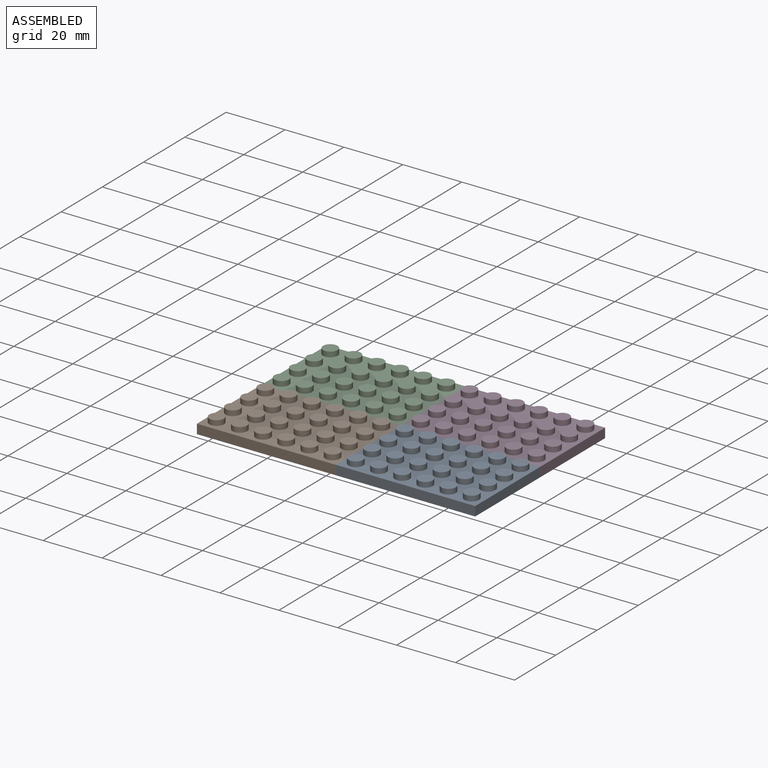
[diagram: assembled view]
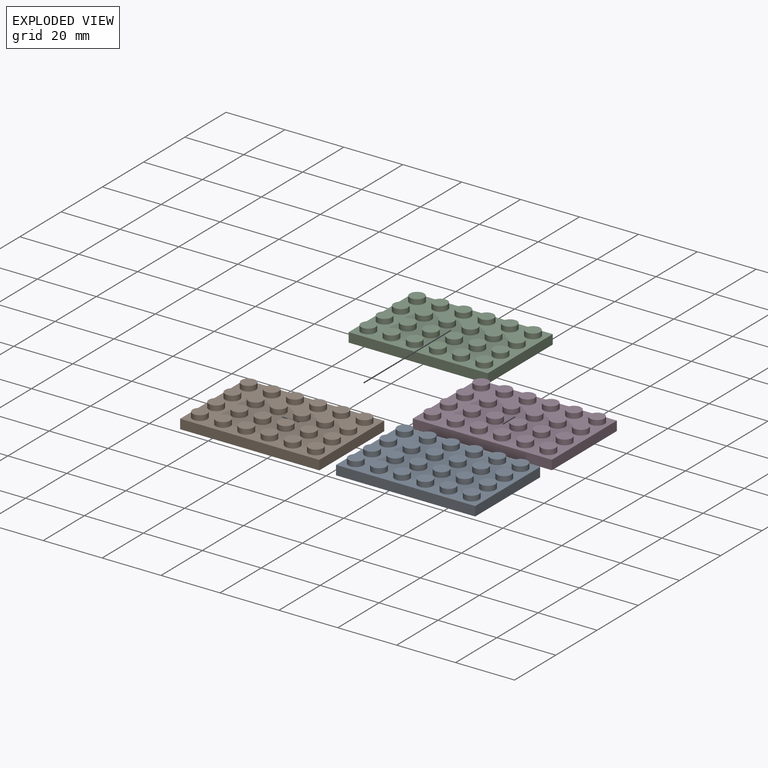
[diagram: exploded view]
GUIDED TOUR — MATED ASSEMBLY (Onshape document 58b31a5422f8670f75dad40a, AutoMate assembly 58b31a5422f8670f75dad40a_1990325701ed851b933301a2_ef3b5d1b8f57e66f4407dce3_default)

This assembly has 4 components, labeled P0..P3 below (a component is one placed occurrence of a part; the same part can appear more than once), held together by 3 mates. A mate is a constraint between two components; its type names the relative motion it leaves free:
  FASTENED — locks the two components together rigidly (no relative motion).
Axis/direction vectors are unit vectors and 'through' points are millimeter coordinates, both in the assembly's world frame.

MATES
  1. FASTENED "Fastened 1": P3 <-> P0, direction (0.000, -1.000, 0.000) through (-35.80, 10.34, 3.17) mm
  2. FASTENED "Fastened 3": P1 <-> P0, direction (1.000, 0.000, 0.000) through (-35.80, -21.15, 1.56) mm
  3. FASTENED "Fastened 2": P1 <-> P2, direction (0.000, 1.000, 0.000) through (-83.04, 10.34, 1.56) mm

ASSEMBLY ORDER
  1. P2 — the base component [order verified]
  2. P1 [order verified]
  3. P3 [order verified]
  4. P0 [order verified]
Order-tag legend:
  [order verified] — this step's position reverses a verified removal order: the component was checked to insert without passing through the ones already placed.

Of the 4 components, 4 carry the full construction recipe — the FeatureScript program that regenerates the part's solid from scratch; the rest are supplied as boundary geometry only.
Each toured component is shown spotlighted twice — in the assembled view, then in the exploded view, where a leader line traces a displaced component back to its assembled socket (saturated green if recipe-attached, orange if geometry-only; every other component desaturated gray) — followed by its recipe or geometry summary and the mates that hold it.
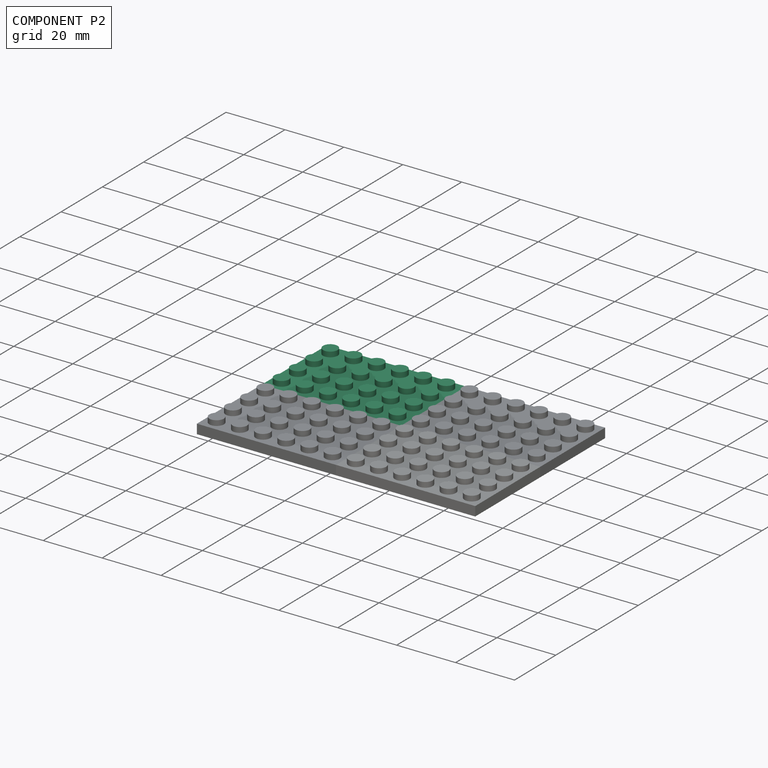
[diagram: component P2 — assembled]
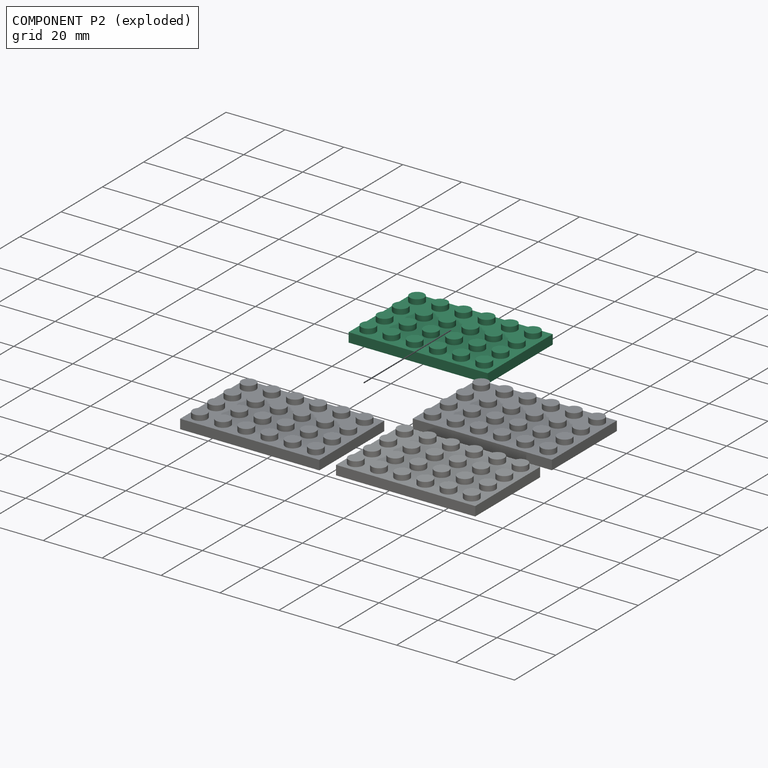
[diagram: component P2 — exploded]
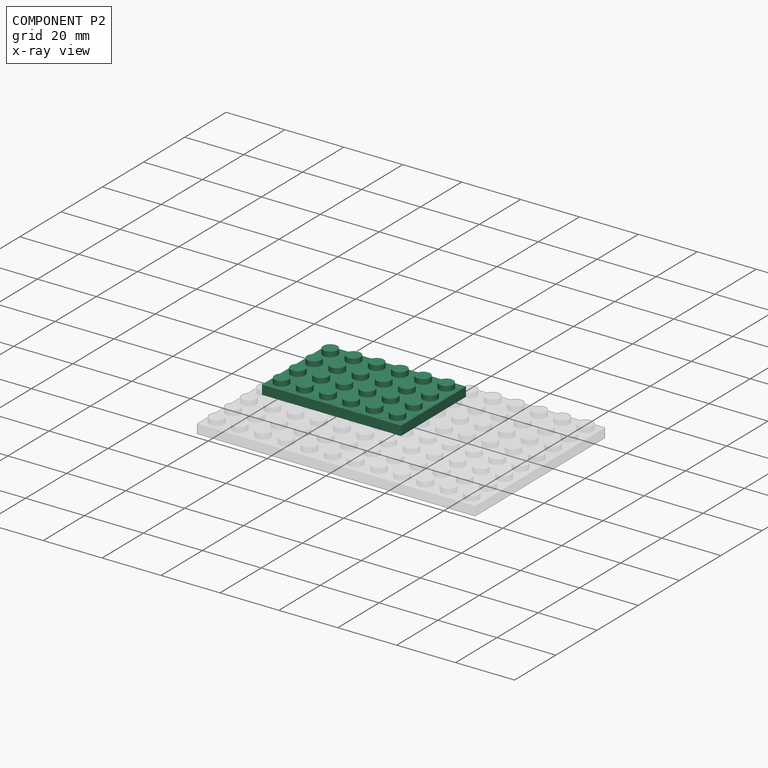
[diagram: component P2 — x-ray view]
COMPONENT P2 — same part as P0 (CADFS 00565946); its construction recipe is shown at P0.
Held by: FASTENED mate "Fastened 2" to P1.
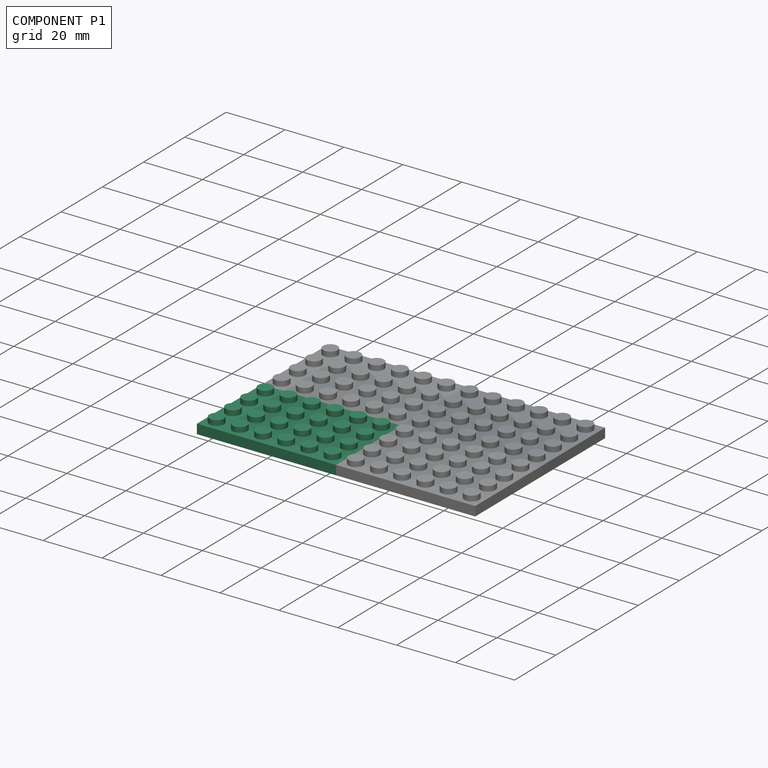
[diagram: component P1 — assembled]
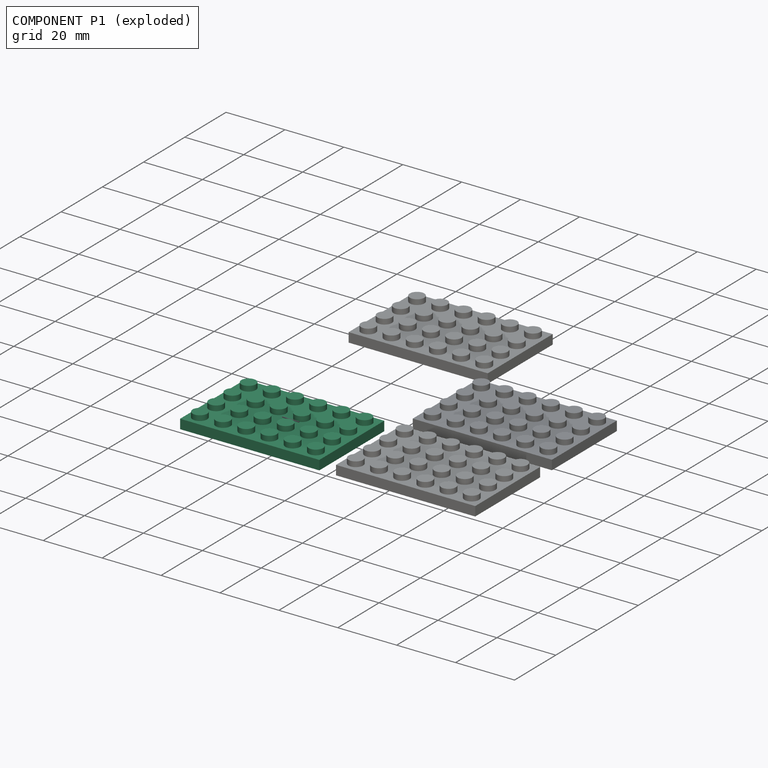
[diagram: component P1 — exploded]
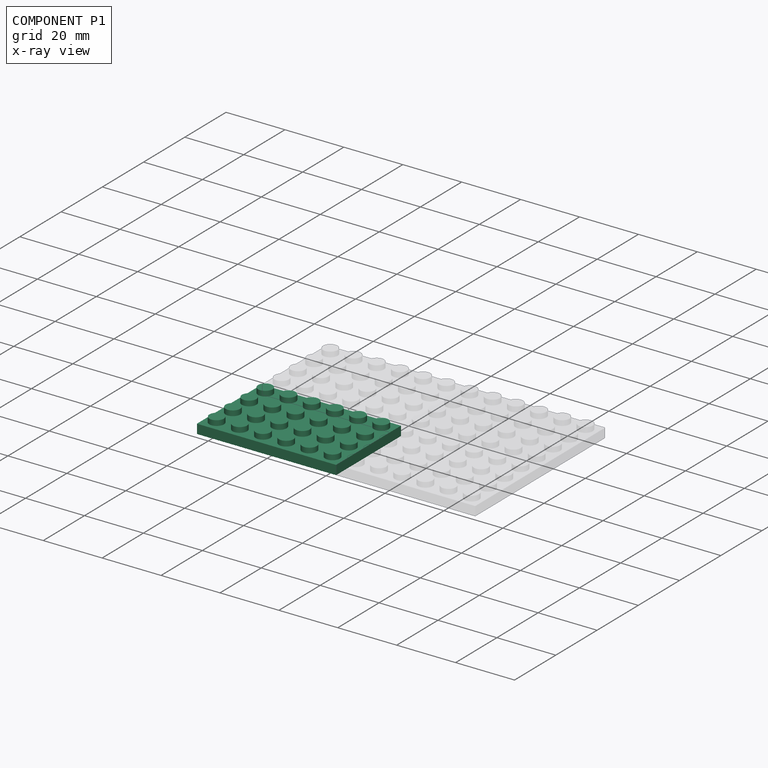
[diagram: component P1 — x-ray view]
COMPONENT P1 — same part as P0 (CADFS 00565946); its construction recipe is shown at P0.
Held by: FASTENED mate "Fastened 3" to P0; FASTENED mate "Fastened 2" to P2.
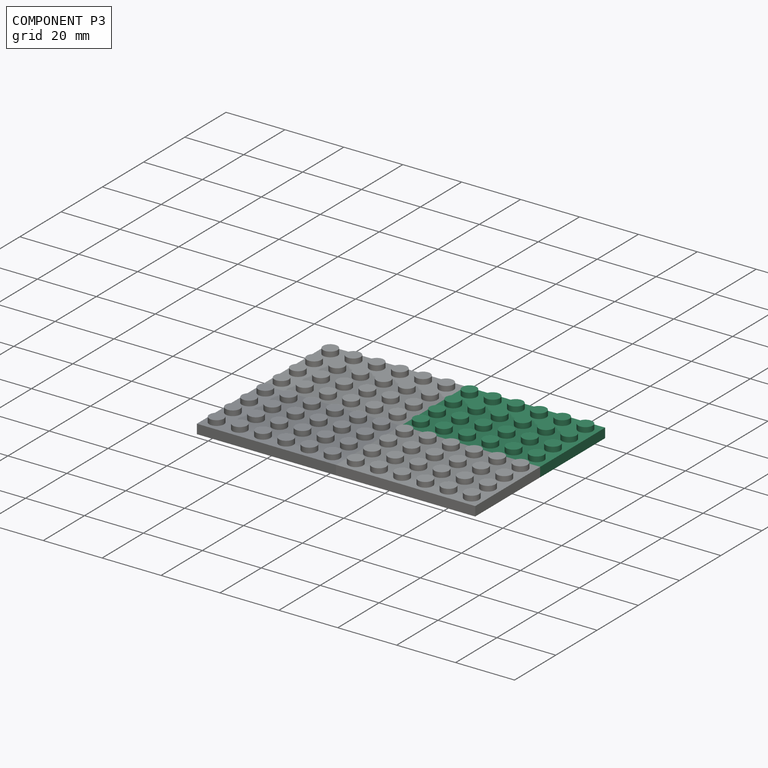
[diagram: component P3 — assembled]
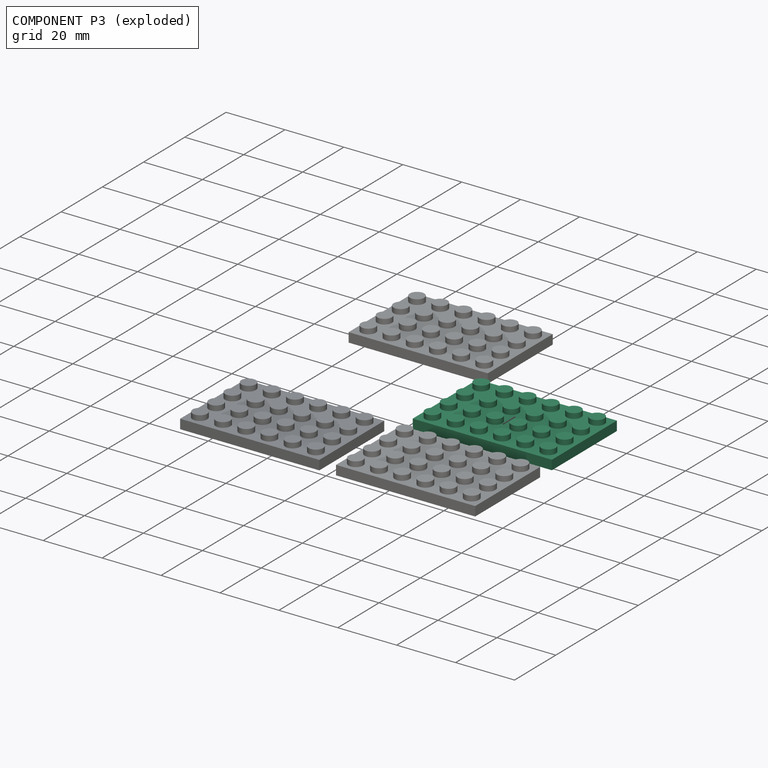
[diagram: component P3 — exploded]
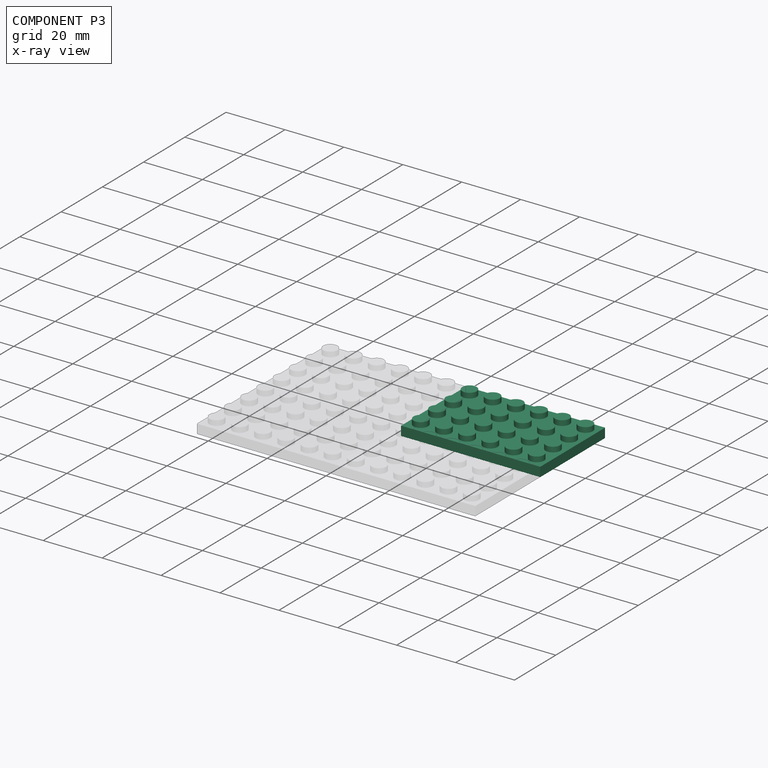
[diagram: component P3 — x-ray view]
COMPONENT P3 — same part as P0 (CADFS 00565946); its construction recipe is shown at P0.
Held by: FASTENED mate "Fastened 1" to P0.
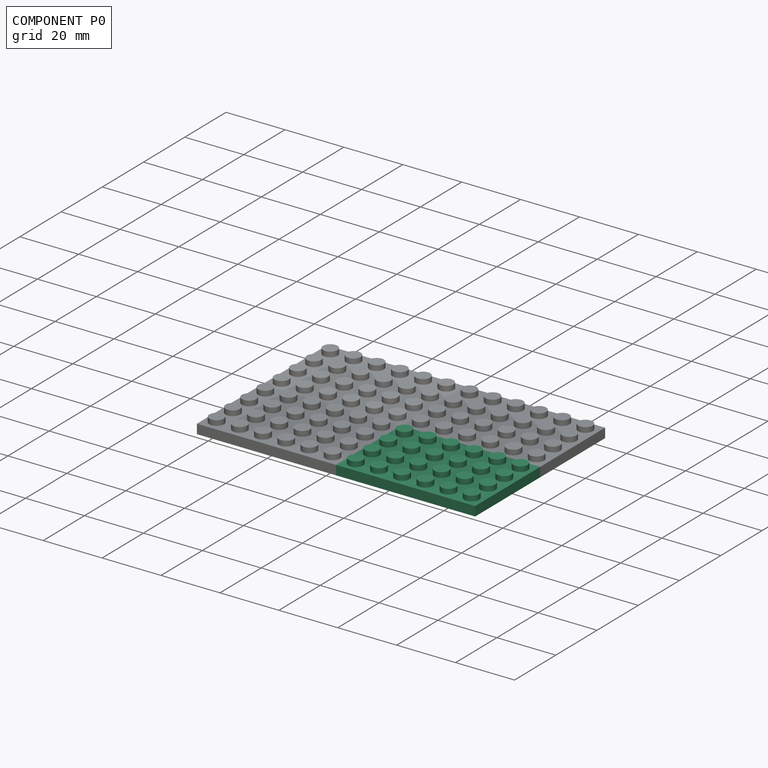
[diagram: component P0 — assembled]
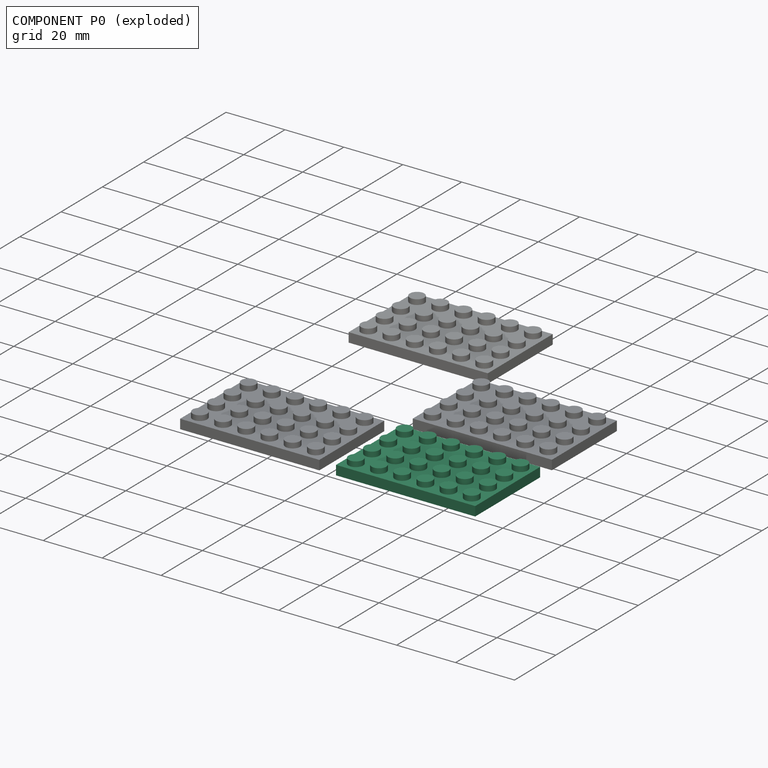
[diagram: component P0 — exploded]
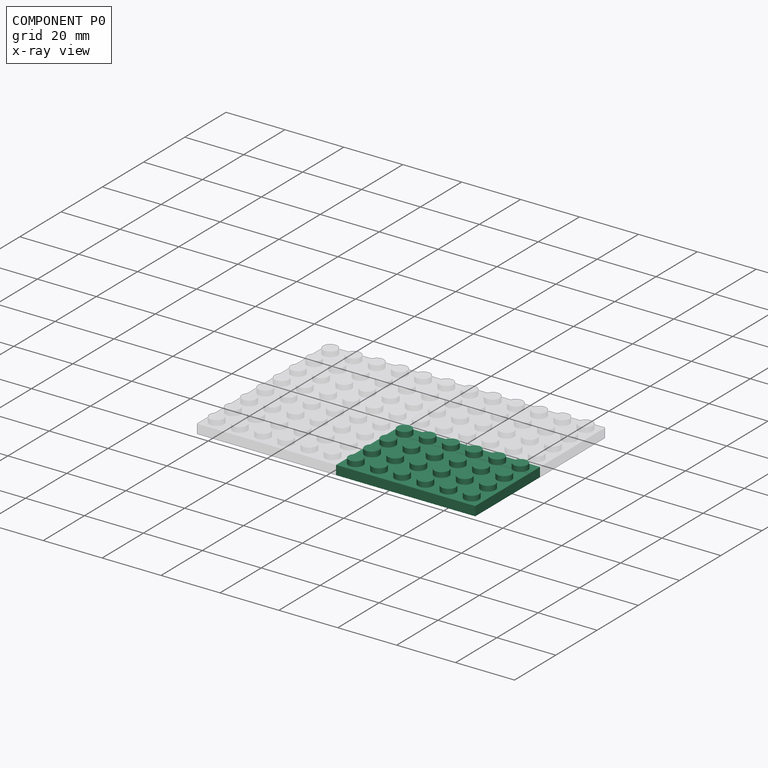
[diagram: component P0 — x-ray view]
COMPONENT P0 — recipe-attached (CADFS 00565946, mesh-verified: the recipe's output STEP matches this component's geometry to below the mesh-comparison resolution (tessellation chordal tolerance ~0.0855 mm)).
Held by: FASTENED mate "Fastened 1" to P3; FASTENED mate "Fastened 3" to P1.
Construction recipe (FeatureScript — the CAD program that rebuilds this solid; sketch coordinates are in the units given by the * unit suffixes, e.g. mm):

FeatureScript 1511;
import(path : "onshape/std/geometry.fs", version : "1511.0");
import(path : "onshape/std/common.fs", version : "1511.0");
const mm = millimeter;
const VERTEX = EntityType.VERTEX;
const EDGE = EntityType.EDGE;
const FACE = EntityType.FACE;
const BODY = EntityType.BODY;
function v(x, y){return vector(x, y);}
function OD(order){return orderDisambiguation(order);}
function OSD(set){return originalSetDisambiguation(set);}
function TD(topology){return topologyDisambiguation(topology);}
function TDD(query){return trueDependencyDisambiguation(query);}
function sQuery(a, b, c) {return sketchEntityQuery(a, b, c);}

annotation { "Feature Type Name" : "Feature", "Feature Type Description" : "" }
export const myFeature = defineFeature(function(context is Context, id is Id, definition is map)
    precondition{}
    {
        {
            var Q0;
            Q0=qCreatedBy(makeId("Top.planeOp"),FACE);
            var sketch = newSketch(context, id + "F0", { "sketchPlane" : qUnion([Q0])});
            skLineSegment(sketch, "E0.rect.bottom", {"start": v(23.62, 15.75) * mm, "end": v(-23.62, 15.75) * mm});
            skLineSegment(sketch, "E0.rect.top", {"start": v(23.62, -15.75) * mm, "end": v(-23.62, -15.75) * mm});
            skLineSegment(sketch, "E0.rect.left", {"start": v(23.62, 15.75) * mm, "end": v(23.62, -15.75) * mm});
            skLineSegment(sketch, "E0.rect.right", {"start": v(-23.62, 15.75) * mm, "end": v(-23.62, -15.75) * mm});
            skPoint(sketch, "E0.rect.middle", {"position": v(0, 0) * mm});
            skSolve(sketch);
        }
        {
            var Q0;
            Q0=makeQuery(id+"F0.imprint","IMPRINT",FACE,{"disambiguationData":[TD([[makeQuery(id+"F0.imprint","IMPRINT",EDGE,{"derivedFrom":sQuery(id+"F0.wireOp",EDGE,"E0.rect.bottom")}),1.0]])]});
            extrude(context, id + "F1", {"entities" : qUnion([Q0]), "depth" : 3.2 * mm});
        }
        {
            var Q0;
            Q0=makeQuery(id+"F1.opExtrude","CAP_FACE",FACE,{"disambiguationData":[OSD([sQuery(id+"F0.wireOp",EDGE,"E0.rect.bottom"),sQuery(id+"F0.wireOp",EDGE,"E0.rect.top"),sQuery(id+"F0.wireOp",EDGE,"E0.rect.left"),sQuery(id+"F0.wireOp",EDGE,"E0.rect.right")])],"isStart":false});
            var sketch = newSketch(context, id + "F2", { "sketchPlane" : qUnion([Q0])});
            skLineSegment(sketch, "E1", {"start": v(0, 0) * mm, "end": v(0, 7.87) * mm});
            skLineSegment(sketch, "E2", {"start": v(0, 7.87) * mm, "end": v(0, 15.75) * mm});
            skLineSegment(sketch, "E3", {"start": v(0, 0) * mm, "end": v(0, -7.87) * mm});
            skLineSegment(sketch, "E4", {"start": v(0, -7.87) * mm, "end": v(0, -15.75) * mm});
            skPoint(sketch, "E4.endSnap0", {"position": v(0, -15.75) * mm});
            skLineSegment(sketch, "E5", {"start": v(0, 0) * mm, "end": v(3.94, 0) * mm});
            skLineSegment(sketch, "E6", {"start": v(3.94, 0) * mm, "end": v(11.81, 0) * mm});
            skLineSegment(sketch, "E7", {"start": v(11.81, 0) * mm, "end": v(19.69, 0) * mm});
            skLineSegment(sketch, "E8", {"start": v(0, 0) * mm, "end": v(-3.94, 0) * mm});
            skLineSegment(sketch, "E9", {"start": v(-3.94, 0) * mm, "end": v(-11.81, 0) * mm});
            skLineSegment(sketch, "E10", {"start": v(-11.81, 0) * mm, "end": v(-19.69, 0) * mm});
            skLineSegment(sketch, "E11", {"start": v(-19.69, 0) * mm, "end": v(-19.69, -3.94) * mm});
            skLineSegment(sketch, "E12", {"start": v(-19.69, -3.94) * mm, "end": v(-19.69, -11.81) * mm});
            skLineSegment(sketch, "E13", {"start": v(-19.69, 0) * mm, "end": v(-19.69, 3.94) * mm});
            skLineSegment(sketch, "E14", {"start": v(-19.69, 3.94) * mm, "end": v(-19.69, 11.81) * mm});
            skLineSegment(sketch, "E15", {"start": v(-19.69, 3.94) * mm, "end": v(-11.81, 3.94) * mm});
            skLineSegment(sketch, "E16", {"start": v(-11.81, 3.94) * mm, "end": v(-3.94, 3.94) * mm});
            skLineSegment(sketch, "E17", {"start": v(-3.94, 3.94) * mm, "end": v(-3.94, 11.81) * mm});
            skLineSegment(sketch, "E18", {"start": v(-3.94, 11.81) * mm, "end": v(-11.81, 11.81) * mm});
            skLineSegment(sketch, "E19", {"start": v(-19.69, -3.94) * mm, "end": v(-11.81, -3.94) * mm});
            skLineSegment(sketch, "E20", {"start": v(-11.81, -3.94) * mm, "end": v(-3.94, -3.94) * mm});
            skLineSegment(sketch, "E21", {"start": v(-3.94, -3.94) * mm, "end": v(-3.94, -11.81) * mm});
            skLineSegment(sketch, "E22", {"start": v(-3.94, -11.81) * mm, "end": v(-11.81, -11.81) * mm});
            skLineSegment(sketch, "E23", {"start": v(3.94, 0) * mm, "end": v(3.94, 3.94) * mm});
            skPoint(sketch, "E23.endSnap0", {"position": v(0, 3.94) * mm});
            skLineSegment(sketch, "E24", {"start": v(3.94, 3.94) * mm, "end": v(3.94, 11.81) * mm});
            skPoint(sketch, "E24.endSnap0", {"position": v(0, 11.81) * mm});
            skLineSegment(sketch, "E25", {"start": v(3.94, 11.81) * mm, "end": v(11.81, 11.81) * mm});
            skLineSegment(sketch, "E26", {"start": v(11.81, 11.81) * mm, "end": v(19.69, 11.81) * mm});
            skLineSegment(sketch, "E27", {"start": v(19.69, 11.81) * mm, "end": v(19.69, 3.94) * mm});
            skLineSegment(sketch, "E28", {"start": v(19.69, 3.94) * mm, "end": v(11.81, 3.94) * mm});
            skLineSegment(sketch, "E29", {"start": v(3.94, 0) * mm, "end": v(3.94, -3.94) * mm});
            skPoint(sketch, "E29.endSnap0", {"position": v(0, -3.94) * mm});
            skLineSegment(sketch, "E30", {"start": v(3.94, -3.94) * mm, "end": v(3.94, -11.81) * mm});
            skPoint(sketch, "E30.endSnap0", {"position": v(0, -11.81) * mm});
            skLineSegment(sketch, "E31", {"start": v(3.94, -11.81) * mm, "end": v(11.81, -11.81) * mm});
            skLineSegment(sketch, "E32", {"start": v(11.81, -11.81) * mm, "end": v(19.69, -11.81) * mm});
            skLineSegment(sketch, "E33", {"start": v(19.69, -11.81) * mm, "end": v(19.69, -3.94) * mm});
            skLineSegment(sketch, "E34", {"start": v(19.69, -3.94) * mm, "end": v(11.81, -3.94) * mm});
            skCircle(sketch, "E35", {"center": v(-19.69, 11.81) * mm, "radius": 2.46 * mm});
            skCircle(sketch, "E36", {"center": v(-11.81, 11.81) * mm, "radius": 2.46 * mm});
            skCircle(sketch, "E37", {"center": v(-3.94, 11.81) * mm, "radius": 2.46 * mm});
            skCircle(sketch, "E38", {"center": v(3.94, 11.81) * mm, "radius": 2.46 * mm});
            skCircle(sketch, "E39", {"center": v(11.81, 11.81) * mm, "radius": 2.46 * mm});
            skCircle(sketch, "E40", {"center": v(19.69, 11.81) * mm, "radius": 2.46 * mm});
            skCircle(sketch, "E41", {"center": v(19.69, 3.94) * mm, "radius": 2.46 * mm});
            skCircle(sketch, "E42", {"center": v(11.81, 3.94) * mm, "radius": 2.46 * mm});
            skCircle(sketch, "E43", {"center": v(3.94, 3.94) * mm, "radius": 2.46 * mm});
            skCircle(sketch, "E44", {"center": v(-3.94, 3.94) * mm, "radius": 2.46 * mm});
            skCircle(sketch, "E45", {"center": v(-11.81, 3.94) * mm, "radius": 2.46 * mm});
            skCircle(sketch, "E46", {"center": v(-19.69, 3.94) * mm, "radius": 2.46 * mm});
            skCircle(sketch, "E47", {"center": v(-19.69, -3.94) * mm, "radius": 2.46 * mm});
            skCircle(sketch, "E48", {"center": v(-11.81, -3.94) * mm, "radius": 2.46 * mm});
            skCircle(sketch, "E49", {"center": v(-3.94, -3.94) * mm, "radius": 2.46 * mm});
            skCircle(sketch, "E50", {"center": v(-3.94, -11.81) * mm, "radius": 2.46 * mm});
            skCircle(sketch, "E51", {"center": v(-11.81, -11.81) * mm, "radius": 2.46 * mm});
            skCircle(sketch, "E52", {"center": v(-19.69, -11.81) * mm, "radius": 2.46 * mm});
            skCircle(sketch, "E53", {"center": v(3.94, -11.81) * mm, "radius": 2.46 * mm});
            skCircle(sketch, "E54", {"center": v(11.81, -11.81) * mm, "radius": 2.46 * mm});
            skCircle(sketch, "E55", {"center": v(19.69, -11.81) * mm, "radius": 2.46 * mm});
            skCircle(sketch, "E56", {"center": v(19.69, -3.94) * mm, "radius": 2.46 * mm});
            skCircle(sketch, "E57", {"center": v(11.81, -3.94) * mm, "radius": 2.46 * mm});
            skCircle(sketch, "E58", {"center": v(3.94, -3.94) * mm, "radius": 2.46 * mm});
            skSolve(sketch);
        }
        {
            var Q0;
            Q0=makeQuery(id+"F2.imprint","IMPRINT",FACE,{"disambiguationData":[TD([[makeQuery(id+"F2.imprint","IMPRINT",EDGE,{"derivedFrom":sQuery(id+"F2.wireOp",EDGE,"E35")}),1.0]])]});
            var Q1;
            Q1=makeQuery(id+"F2.imprint","IMPRINT",FACE,{"disambiguationData":[TD([[makeQuery(id+"F2.imprint","IMPRINT",EDGE,{"derivedFrom":sQuery(id+"F2.wireOp",EDGE,"E36")}),1.0]])]});
            var Q2;
            {var subQ0=sQuery(id+"F2.wireOp",EDGE,"E18");var subQ1=sQuery(id+"F2.wireOp",EDGE,"E17");var subQ2=makeQuery(id+"F2.imprint","INTERSECT",VERTEX,{"derivedFrom":[subQ1,subQ0]});Q2=makeQuery(id+"F2.imprint","IMPRINT",FACE,{"disambiguationData":[TD([[makeQuery(id+"F2.imprint","IMPRINT",EDGE,{"disambiguationData":[TD([[subQ2,1.0]])],"derivedFrom":subQ1}),-1.0]])]});}
            var Q3;
            {var subQ0=sQuery(id+"F2.wireOp",EDGE,"E18");var subQ1=sQuery(id+"F2.wireOp",EDGE,"E17");var subQ2=makeQuery(id+"F2.imprint","INTERSECT",VERTEX,{"derivedFrom":[subQ1,subQ0]});Q3=makeQuery(id+"F2.imprint","IMPRINT",FACE,{"disambiguationData":[TD([[makeQuery(id+"F2.imprint","IMPRINT",EDGE,{"disambiguationData":[TD([[subQ2,1.0]])],"derivedFrom":subQ1}),1.0]])]});}
            var Q4;
            {var subQ0=sQuery(id+"F2.wireOp",EDGE,"E25");var subQ1=sQuery(id+"F2.wireOp",EDGE,"E24");var subQ2=makeQuery(id+"F2.imprint","INTERSECT",VERTEX,{"derivedFrom":[subQ1,subQ0]});Q4=makeQuery(id+"F2.imprint","IMPRINT",FACE,{"disambiguationData":[TD([[makeQuery(id+"F2.imprint","IMPRINT",EDGE,{"disambiguationData":[TD([[subQ2,1.0]])],"derivedFrom":subQ1}),1.0]])]});}
            var Q5;
            {var subQ0=sQuery(id+"F2.wireOp",EDGE,"E25");var subQ1=sQuery(id+"F2.wireOp",EDGE,"E24");var subQ2=makeQuery(id+"F2.imprint","INTERSECT",VERTEX,{"derivedFrom":[subQ1,subQ0]});Q5=makeQuery(id+"F2.imprint","IMPRINT",FACE,{"disambiguationData":[TD([[makeQuery(id+"F2.imprint","IMPRINT",EDGE,{"disambiguationData":[TD([[subQ2,1.0]])],"derivedFrom":subQ1}),-1.0]])]});}
            var Q6;
            {var subQ0=sQuery(id+"F2.wireOp",EDGE,"E24");var subQ1=sQuery(id+"F2.wireOp",EDGE,"E23");var subQ2=makeQuery(id+"F2.imprint","INTERSECT",VERTEX,{"derivedFrom":[subQ1,subQ0]});Q6=makeQuery(id+"F2.imprint","IMPRINT",FACE,{"disambiguationData":[TD([[makeQuery(id+"F2.imprint","IMPRINT",EDGE,{"disambiguationData":[TD([[subQ2,1.0]])],"derivedFrom":subQ1}),-1.0]])]});}
            var Q7;
            {var subQ0=sQuery(id+"F2.wireOp",EDGE,"E24");var subQ1=sQuery(id+"F2.wireOp",EDGE,"E23");var subQ2=makeQuery(id+"F2.imprint","INTERSECT",VERTEX,{"derivedFrom":[subQ1,subQ0]});Q7=makeQuery(id+"F2.imprint","IMPRINT",FACE,{"disambiguationData":[TD([[makeQuery(id+"F2.imprint","IMPRINT",EDGE,{"disambiguationData":[TD([[subQ2,1.0]])],"derivedFrom":subQ1}),1.0]])]});}
            var Q8;
            {var subQ0=sQuery(id+"F2.wireOp",EDGE,"E17");var subQ1=sQuery(id+"F2.wireOp",EDGE,"E16");var subQ2=makeQuery(id+"F2.imprint","INTERSECT",VERTEX,{"derivedFrom":[subQ1,subQ0]});Q8=makeQuery(id+"F2.imprint","IMPRINT",FACE,{"disambiguationData":[TD([[makeQuery(id+"F2.imprint","IMPRINT",EDGE,{"disambiguationData":[TD([[subQ2,1.0]])],"derivedFrom":subQ1}),-1.0]])]});}
            var Q9;
            {var subQ0=sQuery(id+"F2.wireOp",EDGE,"E17");var subQ1=sQuery(id+"F2.wireOp",EDGE,"E16");var subQ2=makeQuery(id+"F2.imprint","INTERSECT",VERTEX,{"derivedFrom":[subQ1,subQ0]});Q9=makeQuery(id+"F2.imprint","IMPRINT",FACE,{"disambiguationData":[TD([[makeQuery(id+"F2.imprint","IMPRINT",EDGE,{"disambiguationData":[TD([[subQ2,1.0]])],"derivedFrom":subQ1}),1.0]])]});}
            var Q10;
            {var subQ0=sQuery(id+"F2.wireOp",EDGE,"E16");var subQ1=sQuery(id+"F2.wireOp",EDGE,"E15");var subQ2=makeQuery(id+"F2.imprint","INTERSECT",VERTEX,{"derivedFrom":[subQ1,subQ0]});Q10=makeQuery(id+"F2.imprint","IMPRINT",FACE,{"disambiguationData":[TD([[makeQuery(id+"F2.imprint","IMPRINT",EDGE,{"disambiguationData":[TD([[subQ2,1.0]])],"derivedFrom":subQ1}),1.0]])]});}
            var Q11;
            {var subQ0=sQuery(id+"F2.wireOp",EDGE,"E16");var subQ1=sQuery(id+"F2.wireOp",EDGE,"E15");var subQ2=makeQuery(id+"F2.imprint","INTERSECT",VERTEX,{"derivedFrom":[subQ1,subQ0]});Q11=makeQuery(id+"F2.imprint","IMPRINT",FACE,{"disambiguationData":[TD([[makeQuery(id+"F2.imprint","IMPRINT",EDGE,{"disambiguationData":[TD([[subQ2,1.0]])],"derivedFrom":subQ1}),-1.0]])]});}
            var Q12;
            {var subQ1=sQuery(id+"F2.wireOp",EDGE,"E14");var subQ3=sQuery(id+"F2.wireOp",EDGE,"E46");var subQ4=makeQuery(id+"F2.imprint","INTERSECT",VERTEX,{"derivedFrom":[subQ1,subQ3]});Q12=makeQuery(id+"F2.imprint","IMPRINT",FACE,{"disambiguationData":[TD([[makeQuery(id+"F2.imprint","IMPRINT",EDGE,{"disambiguationData":[TD([[subQ4,1.0]])],"derivedFrom":subQ3}),1.0]])]});}
            var Q13;
            {var subQ1=sQuery(id+"F2.wireOp",EDGE,"E13");var subQ3=sQuery(id+"F2.wireOp",EDGE,"E46");var subQ4=makeQuery(id+"F2.imprint","INTERSECT",VERTEX,{"derivedFrom":[subQ1,subQ3]});Q13=makeQuery(id+"F2.imprint","IMPRINT",FACE,{"disambiguationData":[TD([[makeQuery(id+"F2.imprint","IMPRINT",EDGE,{"disambiguationData":[TD([[subQ4,-1.0]])],"derivedFrom":subQ3}),1.0]])]});}
            var Q14;
            {var subQ1=sQuery(id+"F2.wireOp",EDGE,"E13");var subQ3=sQuery(id+"F2.wireOp",EDGE,"E46");var subQ4=makeQuery(id+"F2.imprint","INTERSECT",VERTEX,{"derivedFrom":[subQ1,subQ3]});Q14=makeQuery(id+"F2.imprint","IMPRINT",FACE,{"disambiguationData":[TD([[makeQuery(id+"F2.imprint","IMPRINT",EDGE,{"disambiguationData":[TD([[subQ4,1.0]])],"derivedFrom":subQ3}),1.0]])]});}
            var Q15;
            {var subQ1=sQuery(id+"F2.wireOp",EDGE,"E11");var subQ3=sQuery(id+"F2.wireOp",EDGE,"E47");var subQ4=makeQuery(id+"F2.imprint","INTERSECT",VERTEX,{"derivedFrom":[subQ1,subQ3]});Q15=makeQuery(id+"F2.imprint","IMPRINT",FACE,{"disambiguationData":[TD([[makeQuery(id+"F2.imprint","IMPRINT",EDGE,{"disambiguationData":[TD([[subQ4,1.0]])],"derivedFrom":subQ3}),1.0]])]});}
            var Q16;
            {var subQ1=sQuery(id+"F2.wireOp",EDGE,"E12");var subQ3=sQuery(id+"F2.wireOp",EDGE,"E47");var subQ4=makeQuery(id+"F2.imprint","INTERSECT",VERTEX,{"derivedFrom":[subQ1,subQ3]});Q16=makeQuery(id+"F2.imprint","IMPRINT",FACE,{"disambiguationData":[TD([[makeQuery(id+"F2.imprint","IMPRINT",EDGE,{"disambiguationData":[TD([[subQ4,-1.0]])],"derivedFrom":subQ3}),1.0]])]});}
            var Q17;
            {var subQ1=sQuery(id+"F2.wireOp",EDGE,"E11");var subQ3=sQuery(id+"F2.wireOp",EDGE,"E47");var subQ4=makeQuery(id+"F2.imprint","INTERSECT",VERTEX,{"derivedFrom":[subQ1,subQ3]});Q17=makeQuery(id+"F2.imprint","IMPRINT",FACE,{"disambiguationData":[TD([[makeQuery(id+"F2.imprint","IMPRINT",EDGE,{"disambiguationData":[TD([[subQ4,-1.0]])],"derivedFrom":subQ3}),1.0]])]});}
            var Q18;
            {var subQ0=sQuery(id+"F2.wireOp",EDGE,"E20");var subQ1=sQuery(id+"F2.wireOp",EDGE,"E19");var subQ2=makeQuery(id+"F2.imprint","INTERSECT",VERTEX,{"derivedFrom":[subQ1,subQ0]});Q18=makeQuery(id+"F2.imprint","IMPRINT",FACE,{"disambiguationData":[TD([[makeQuery(id+"F2.imprint","IMPRINT",EDGE,{"disambiguationData":[TD([[subQ2,1.0]])],"derivedFrom":subQ1}),1.0]])]});}
            var Q19;
            {var subQ0=sQuery(id+"F2.wireOp",EDGE,"E20");var subQ1=sQuery(id+"F2.wireOp",EDGE,"E19");var subQ2=makeQuery(id+"F2.imprint","INTERSECT",VERTEX,{"derivedFrom":[subQ1,subQ0]});Q19=makeQuery(id+"F2.imprint","IMPRINT",FACE,{"disambiguationData":[TD([[makeQuery(id+"F2.imprint","IMPRINT",EDGE,{"disambiguationData":[TD([[subQ2,1.0]])],"derivedFrom":subQ1}),-1.0]])]});}
            var Q20;
            {var subQ0=sQuery(id+"F2.wireOp",EDGE,"E21");var subQ1=sQuery(id+"F2.wireOp",EDGE,"E20");var subQ2=makeQuery(id+"F2.imprint","INTERSECT",VERTEX,{"derivedFrom":[subQ1,subQ0]});Q20=makeQuery(id+"F2.imprint","IMPRINT",FACE,{"disambiguationData":[TD([[makeQuery(id+"F2.imprint","IMPRINT",EDGE,{"disambiguationData":[TD([[subQ2,1.0]])],"derivedFrom":subQ1}),-1.0]])]});}
            var Q21;
            {var subQ0=sQuery(id+"F2.wireOp",EDGE,"E21");var subQ1=sQuery(id+"F2.wireOp",EDGE,"E20");var subQ2=makeQuery(id+"F2.imprint","INTERSECT",VERTEX,{"derivedFrom":[subQ1,subQ0]});Q21=makeQuery(id+"F2.imprint","IMPRINT",FACE,{"disambiguationData":[TD([[makeQuery(id+"F2.imprint","IMPRINT",EDGE,{"disambiguationData":[TD([[subQ2,1.0]])],"derivedFrom":subQ1}),1.0]])]});}
            var Q22;
            {var subQ0=sQuery(id+"F2.wireOp",EDGE,"E22");var subQ1=sQuery(id+"F2.wireOp",EDGE,"E21");var subQ2=makeQuery(id+"F2.imprint","INTERSECT",VERTEX,{"derivedFrom":[subQ1,subQ0]});Q22=makeQuery(id+"F2.imprint","IMPRINT",FACE,{"disambiguationData":[TD([[makeQuery(id+"F2.imprint","IMPRINT",EDGE,{"disambiguationData":[TD([[subQ2,1.0]])],"derivedFrom":subQ1}),1.0]])]});}
            var Q23;
            {var subQ0=sQuery(id+"F2.wireOp",EDGE,"E22");var subQ1=sQuery(id+"F2.wireOp",EDGE,"E21");var subQ2=makeQuery(id+"F2.imprint","INTERSECT",VERTEX,{"derivedFrom":[subQ1,subQ0]});Q23=makeQuery(id+"F2.imprint","IMPRINT",FACE,{"disambiguationData":[TD([[makeQuery(id+"F2.imprint","IMPRINT",EDGE,{"disambiguationData":[TD([[subQ2,1.0]])],"derivedFrom":subQ1}),-1.0]])]});}
            var Q24;
            Q24=makeQuery(id+"F2.imprint","IMPRINT",FACE,{"disambiguationData":[TD([[makeQuery(id+"F2.imprint","IMPRINT",EDGE,{"derivedFrom":sQuery(id+"F2.wireOp",EDGE,"E51")}),1.0]])]});
            var Q25;
            Q25=makeQuery(id+"F2.imprint","IMPRINT",FACE,{"disambiguationData":[TD([[makeQuery(id+"F2.imprint","IMPRINT",EDGE,{"derivedFrom":sQuery(id+"F2.wireOp",EDGE,"E52")}),1.0]])]});
            var Q26;
            {var subQ0=sQuery(id+"F2.wireOp",EDGE,"E31");var subQ1=sQuery(id+"F2.wireOp",EDGE,"E30");var subQ2=makeQuery(id+"F2.imprint","INTERSECT",VERTEX,{"derivedFrom":[subQ1,subQ0]});Q26=makeQuery(id+"F2.imprint","IMPRINT",FACE,{"disambiguationData":[TD([[makeQuery(id+"F2.imprint","IMPRINT",EDGE,{"disambiguationData":[TD([[subQ2,1.0]])],"derivedFrom":subQ1}),-1.0]])]});}
            var Q27;
            {var subQ0=sQuery(id+"F2.wireOp",EDGE,"E31");var subQ1=sQuery(id+"F2.wireOp",EDGE,"E30");var subQ2=makeQuery(id+"F2.imprint","INTERSECT",VERTEX,{"derivedFrom":[subQ1,subQ0]});Q27=makeQuery(id+"F2.imprint","IMPRINT",FACE,{"disambiguationData":[TD([[makeQuery(id+"F2.imprint","IMPRINT",EDGE,{"disambiguationData":[TD([[subQ2,1.0]])],"derivedFrom":subQ1}),1.0]])]});}
            var Q28;
            {var subQ0=sQuery(id+"F2.wireOp",EDGE,"E30");var subQ1=sQuery(id+"F2.wireOp",EDGE,"E29");var subQ2=makeQuery(id+"F2.imprint","INTERSECT",VERTEX,{"derivedFrom":[subQ1,subQ0]});Q28=makeQuery(id+"F2.imprint","IMPRINT",FACE,{"disambiguationData":[TD([[makeQuery(id+"F2.imprint","IMPRINT",EDGE,{"disambiguationData":[TD([[subQ2,1.0]])],"derivedFrom":subQ1}),1.0]])]});}
            var Q29;
            {var subQ0=sQuery(id+"F2.wireOp",EDGE,"E30");var subQ1=sQuery(id+"F2.wireOp",EDGE,"E29");var subQ2=makeQuery(id+"F2.imprint","INTERSECT",VERTEX,{"derivedFrom":[subQ1,subQ0]});Q29=makeQuery(id+"F2.imprint","IMPRINT",FACE,{"disambiguationData":[TD([[makeQuery(id+"F2.imprint","IMPRINT",EDGE,{"disambiguationData":[TD([[subQ2,1.0]])],"derivedFrom":subQ1}),-1.0]])]});}
            var Q30;
            Q30=makeQuery(id+"F2.imprint","IMPRINT",FACE,{"disambiguationData":[TD([[makeQuery(id+"F2.imprint","IMPRINT",EDGE,{"derivedFrom":sQuery(id+"F2.wireOp",EDGE,"E57")}),1.0]])]});
            var Q31;
            {var subQ0=sQuery(id+"F2.wireOp",EDGE,"E34");var subQ1=sQuery(id+"F2.wireOp",EDGE,"E33");var subQ2=makeQuery(id+"F2.imprint","INTERSECT",VERTEX,{"derivedFrom":[subQ1,subQ0]});Q31=makeQuery(id+"F2.imprint","IMPRINT",FACE,{"disambiguationData":[TD([[makeQuery(id+"F2.imprint","IMPRINT",EDGE,{"disambiguationData":[TD([[subQ2,1.0]])],"derivedFrom":subQ1}),-1.0]])]});}
            var Q32;
            {var subQ0=sQuery(id+"F2.wireOp",EDGE,"E34");var subQ1=sQuery(id+"F2.wireOp",EDGE,"E33");var subQ2=makeQuery(id+"F2.imprint","INTERSECT",VERTEX,{"derivedFrom":[subQ1,subQ0]});Q32=makeQuery(id+"F2.imprint","IMPRINT",FACE,{"disambiguationData":[TD([[makeQuery(id+"F2.imprint","IMPRINT",EDGE,{"disambiguationData":[TD([[subQ2,1.0]])],"derivedFrom":subQ1}),1.0]])]});}
            var Q33;
            {var subQ0=sQuery(id+"F2.wireOp",EDGE,"E33");var subQ1=sQuery(id+"F2.wireOp",EDGE,"E32");var subQ2=makeQuery(id+"F2.imprint","INTERSECT",VERTEX,{"derivedFrom":[subQ1,subQ0]});Q33=makeQuery(id+"F2.imprint","IMPRINT",FACE,{"disambiguationData":[TD([[makeQuery(id+"F2.imprint","IMPRINT",EDGE,{"disambiguationData":[TD([[subQ2,1.0]])],"derivedFrom":subQ1}),-1.0]])]});}
            var Q34;
            {var subQ0=sQuery(id+"F2.wireOp",EDGE,"E33");var subQ1=sQuery(id+"F2.wireOp",EDGE,"E32");var subQ2=makeQuery(id+"F2.imprint","INTERSECT",VERTEX,{"derivedFrom":[subQ1,subQ0]});Q34=makeQuery(id+"F2.imprint","IMPRINT",FACE,{"disambiguationData":[TD([[makeQuery(id+"F2.imprint","IMPRINT",EDGE,{"disambiguationData":[TD([[subQ2,1.0]])],"derivedFrom":subQ1}),1.0]])]});}
            var Q35;
            {var subQ0=sQuery(id+"F2.wireOp",EDGE,"E32");var subQ1=sQuery(id+"F2.wireOp",EDGE,"E31");var subQ2=makeQuery(id+"F2.imprint","INTERSECT",VERTEX,{"derivedFrom":[subQ1,subQ0]});Q35=makeQuery(id+"F2.imprint","IMPRINT",FACE,{"disambiguationData":[TD([[makeQuery(id+"F2.imprint","IMPRINT",EDGE,{"disambiguationData":[TD([[subQ2,1.0]])],"derivedFrom":subQ1}),1.0]])]});}
            var Q36;
            {var subQ0=sQuery(id+"F2.wireOp",EDGE,"E32");var subQ1=sQuery(id+"F2.wireOp",EDGE,"E31");var subQ2=makeQuery(id+"F2.imprint","INTERSECT",VERTEX,{"derivedFrom":[subQ1,subQ0]});Q36=makeQuery(id+"F2.imprint","IMPRINT",FACE,{"disambiguationData":[TD([[makeQuery(id+"F2.imprint","IMPRINT",EDGE,{"disambiguationData":[TD([[subQ2,1.0]])],"derivedFrom":subQ1}),-1.0]])]});}
            var Q37;
            {var subQ0=sQuery(id+"F2.wireOp",EDGE,"E28");var subQ1=sQuery(id+"F2.wireOp",EDGE,"E27");var subQ2=makeQuery(id+"F2.imprint","INTERSECT",VERTEX,{"derivedFrom":[subQ1,subQ0]});Q37=makeQuery(id+"F2.imprint","IMPRINT",FACE,{"disambiguationData":[TD([[makeQuery(id+"F2.imprint","IMPRINT",EDGE,{"disambiguationData":[TD([[subQ2,1.0]])],"derivedFrom":subQ1}),1.0]])]});}
            var Q38;
            {var subQ0=sQuery(id+"F2.wireOp",EDGE,"E28");var subQ1=sQuery(id+"F2.wireOp",EDGE,"E27");var subQ2=makeQuery(id+"F2.imprint","INTERSECT",VERTEX,{"derivedFrom":[subQ1,subQ0]});Q38=makeQuery(id+"F2.imprint","IMPRINT",FACE,{"disambiguationData":[TD([[makeQuery(id+"F2.imprint","IMPRINT",EDGE,{"disambiguationData":[TD([[subQ2,1.0]])],"derivedFrom":subQ1}),-1.0]])]});}
            var Q39;
            Q39=makeQuery(id+"F2.imprint","IMPRINT",FACE,{"disambiguationData":[TD([[makeQuery(id+"F2.imprint","IMPRINT",EDGE,{"derivedFrom":sQuery(id+"F2.wireOp",EDGE,"E42")}),1.0]])]});
            var Q40;
            {var subQ0=sQuery(id+"F2.wireOp",EDGE,"E26");var subQ1=sQuery(id+"F2.wireOp",EDGE,"E25");var subQ2=makeQuery(id+"F2.imprint","INTERSECT",VERTEX,{"derivedFrom":[subQ1,subQ0]});Q40=makeQuery(id+"F2.imprint","IMPRINT",FACE,{"disambiguationData":[TD([[makeQuery(id+"F2.imprint","IMPRINT",EDGE,{"disambiguationData":[TD([[subQ2,1.0]])],"derivedFrom":subQ1}),-1.0]])]});}
            var Q41;
            {var subQ0=sQuery(id+"F2.wireOp",EDGE,"E26");var subQ1=sQuery(id+"F2.wireOp",EDGE,"E25");var subQ2=makeQuery(id+"F2.imprint","INTERSECT",VERTEX,{"derivedFrom":[subQ1,subQ0]});Q41=makeQuery(id+"F2.imprint","IMPRINT",FACE,{"disambiguationData":[TD([[makeQuery(id+"F2.imprint","IMPRINT",EDGE,{"disambiguationData":[TD([[subQ2,1.0]])],"derivedFrom":subQ1}),1.0]])]});}
            var Q42;
            {var subQ0=sQuery(id+"F2.wireOp",EDGE,"E27");var subQ1=sQuery(id+"F2.wireOp",EDGE,"E26");var subQ2=makeQuery(id+"F2.imprint","INTERSECT",VERTEX,{"derivedFrom":[subQ1,subQ0]});Q42=makeQuery(id+"F2.imprint","IMPRINT",FACE,{"disambiguationData":[TD([[makeQuery(id+"F2.imprint","IMPRINT",EDGE,{"disambiguationData":[TD([[subQ2,1.0]])],"derivedFrom":subQ1}),1.0]])]});}
            var Q43;
            {var subQ0=sQuery(id+"F2.wireOp",EDGE,"E27");var subQ1=sQuery(id+"F2.wireOp",EDGE,"E26");var subQ2=makeQuery(id+"F2.imprint","INTERSECT",VERTEX,{"derivedFrom":[subQ1,subQ0]});Q43=makeQuery(id+"F2.imprint","IMPRINT",FACE,{"disambiguationData":[TD([[makeQuery(id+"F2.imprint","IMPRINT",EDGE,{"disambiguationData":[TD([[subQ2,1.0]])],"derivedFrom":subQ1}),-1.0]])]});}
            extrude(context, id + "F3", {"entities" : qUnion([Q0, Q1, Q2, Q3, Q4, Q5, Q6, Q7, Q8, Q9, Q10, Q11, Q12, Q13, Q14, Q15, Q16, Q17, Q18, Q19, Q20, Q21, Q22, Q23, Q24, Q25, Q26, Q27, Q28, Q29, Q30, Q31, Q32, Q33, Q34, Q35, Q36, Q37, Q38, Q39, Q40, Q41, Q42, Q43]), "operationType" : NewBodyOperationType.ADD, "depth" : 1.75 * mm});
        }
    });
PROVENANCE & LICENSES
Assembly (occurrences, transforms, mates, per-part STEP geometry): AutoMate dataset, Zenodo record 7776208, CC0.
Construction recipes: CADFS (HuggingFace VladPyatov/CADFS, CC-BY-4.0, layered over the ABC dataset), FeatureScript reconstruction programs keyed by ABC model id.
Join: ABC meta listings map ABC model id -> Onshape documentId; within a shared document, parts are matched by geometric signature (bounding-box dims + volume at 0.1% relative tolerance, exact B-rep face/solid counts).
Verification: 4 of this assembly's 4 components carry a recipe attachment, and every attachment is mesh-verified: the CADFS STEP and the AutoMate member STEP were compared as meshes in their shared local frame (symmetric sampled-point-to-mesh distance); worst across the 4 attachments: below the mesh-comparison resolution (tessellation chordal tolerance ~0.0855 mm) on a 57 mm part.
Renders: orthographic iso camera (az 35 / el 25); the floor grid conveys scale (grid pitch printed in each image; no ruler). In the exploded view each component is displaced by its stored offset vector: the offsets alone carry the explosion direction (mate normal/axis signs are not orientation cues and do not encode it), and separation distances are assigned per mate-chain, not proportionally to assembly-order depth.
